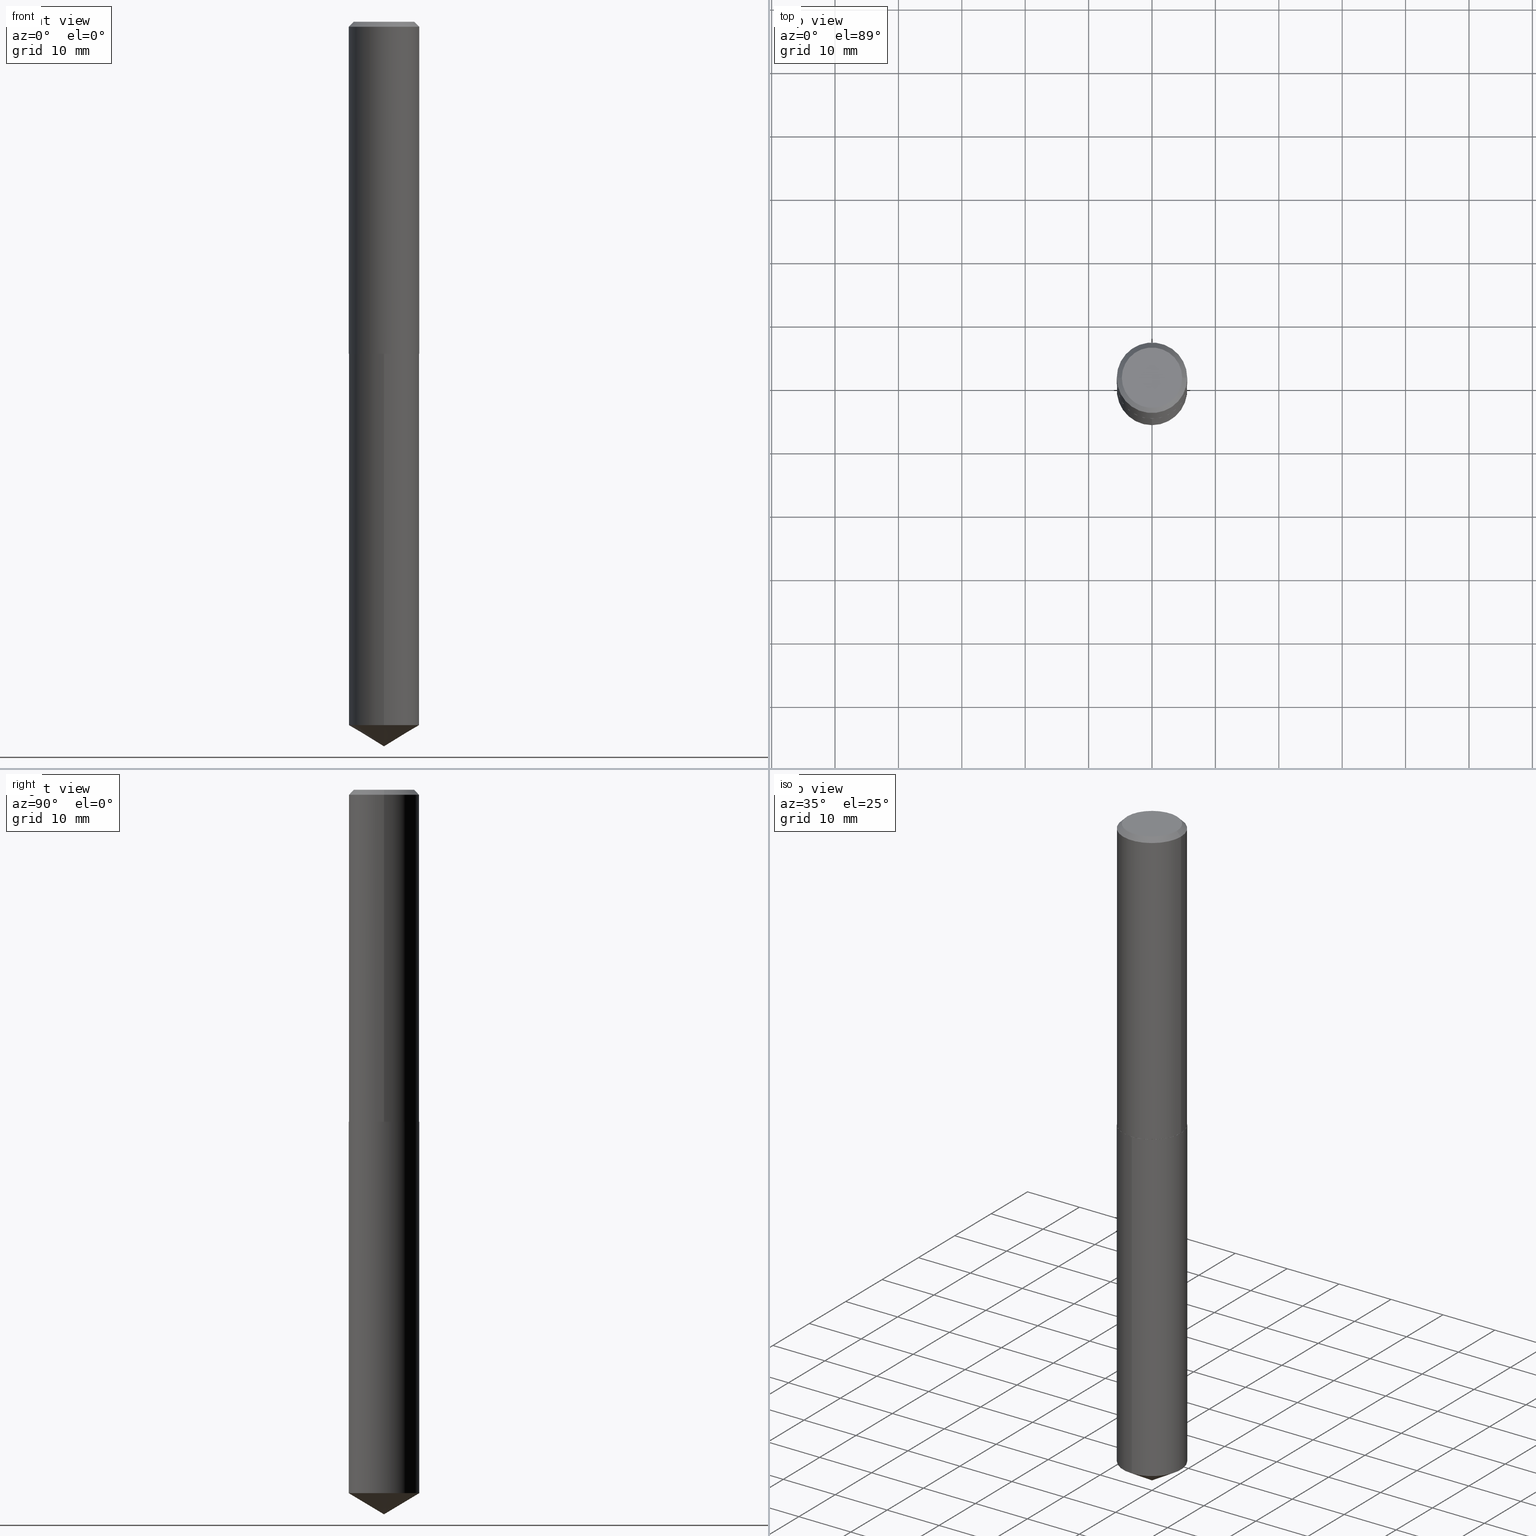
[diagram: canonical four-view strip — front | top / right | iso, engineering-drawing reading convention]
A machine part, canonical four-view strip (front | top / right | iso — engineering-drawing reading convention). The complete STEP part file that produces these views, byte-faithful:
ISO-10303-21;
HEADER;
FILE_DESCRIPTION (( 'STEP AP203' ),
    '1' );
FILE_NAME ('51128.STEP',
    '2024-04-22T18:33:25',
    ( '' ),
    ( '' ),
    'SwSTEP 2.0',
    'SolidWorks 2023',
    '' );
FILE_SCHEMA (( 'CONFIG_CONTROL_DESIGN' ));
ENDSEC;

DATA;
#1 = CARTESIAN_POINT ( 'NONE',  ( 0.2187500000000000000, -1.609842728851371433E-15, -0.03125000000000019429 ) ) ;
#2 = ADVANCED_FACE ( 'NONE', ( #362 ), #266, .T. ) ;
#3 = DIRECTION ( 'NONE',  ( 1.000000000000000000, -6.982962677686266711E-15, 0.000000000000000000 ) ) ;
#4 = EDGE_CURVE ( 'NONE', #21, #66, #49, .T. ) ;
#5 = LINE ( 'NONE', #151, #216 ) ;
#6 = AXIS2_PLACEMENT_3D ( 'NONE', #199, #190, #226 ) ;
#7 = LOCAL_TIME ( 14, 33, 25.00000000000000000, #239 ) ;
#8 = DIRECTION ( 'NONE',  ( -2.445468806185136597E-29, 3.491481338843145583E-15, 1.000000000000000000 ) ) ;
#9 = LENGTH_MEASURE_WITH_UNIT ( LENGTH_MEASURE( 0.02539999999999999897 ), #160 );
#10 = DIRECTION ( 'NONE',  ( -1.000000000000000000, 6.982962677686265922E-15, -4.876176775795935793E-29 ) ) ;
#11 = CIRCLE ( 'NONE', #6, 0.2182500000000001938 ) ;
#12 = APPLICATION_PROTOCOL_DEFINITION ( 'international standard', 'config_control_design', 1994, #194 ) ;
#13 = ORIENTED_EDGE ( 'NONE', *, *, #62, .F. ) ;
#14 = FACE_OUTER_BOUND ( 'NONE', #114, .T. ) ;
#15 = DIRECTION ( 'NONE',  ( -6.982962677686265922E-15, -1.000000000000000000, 3.468864327941581987E-15 ) ) ;
#16 = AXIS2_PLACEMENT_3D ( 'NONE', #270, #171, #82 ) ;
#17 = DIRECTION ( 'NONE',  ( 1.000000000000000000, -6.982962677686266711E-15, 4.876176775795935793E-29 ) ) ;
#18 = CALENDAR_DATE ( 2024, 22, 4 ) ;
#19 = EDGE_LOOP ( 'NONE', ( #231, #193, #320, #311 ) ) ;
#20 = APPROVAL_STATUS ( 'not_yet_approved' ) ;
#21 = VERTEX_POINT ( 'NONE', #141 ) ;
#22 = VECTOR ( 'NONE', #334, 39.37007874015748143 ) ;
#23 = PERSON_AND_ORGANIZATION_ROLE ( 'design_supplier' ) ;
#24 = DIRECTION ( 'NONE',  ( -2.445468806185136877E-29, 3.491481338843145188E-15, 1.000000000000000000 ) ) ;
#25 = ADVANCED_FACE ( 'NONE', ( #261 ), #115, .T. ) ;
#26 = DIRECTION ( 'NONE',  ( 0.000000000000000000, 0.000000000000000000, 1.000000000000000000 ) ) ;
#27 = ORIENTED_EDGE ( 'NONE', *, *, #42, .F. ) ;
#28 = CARTESIAN_POINT ( 'NONE',  ( 5.043779412756844791E-29, -7.201180261363988578E-15, -2.062500000000000000 ) ) ;
#29 = VECTOR ( 'NONE', #156, 39.37007874015748143 ) ;
#30 = LINE ( 'NONE', #31, #29 ) ;
#31 = CARTESIAN_POINT ( 'NONE',  ( 0.2187500000000002220, -8.726957606438439495E-15, -2.062000000000000277 ) ) ;
#32 = FACE_OUTER_BOUND ( 'NONE', #297, .T. ) ;
#33 = AXIS2_PLACEMENT_3D ( 'NONE', #154, #247, #273 ) ;
#34 = CARTESIAN_POINT ( 'NONE',  ( 1.100433559115930198E-28, -1.571205846090825524E-14, -4.500000000000000000 ) ) ;
#35 = ADVANCED_FACE ( 'NONE', ( #385 ), #241, .T. ) ;
#36 = ORIENTED_EDGE ( 'NONE', *, *, #192, .F. ) ;
#37 = ORIENTED_EDGE ( 'NONE', *, *, #263, .T. ) ;
#38 = AXIS2_PLACEMENT_3D ( 'NONE', #246, #8, #3 ) ;
#39 = CC_DESIGN_APPROVAL ( #305, ( #169 ) ) ;
#40 = DIRECTION ( 'NONE',  ( 2.445468806185136597E-29, -3.491481338843145583E-15, -1.000000000000000000 ) ) ;
#41 = VERTEX_POINT ( 'NONE', #236 ) ;
#42 = EDGE_CURVE ( 'NONE', #86, #213, #357, .T. ) ;
#43 = LINE ( 'NONE', #136, #346 ) ;
#44 = EDGE_CURVE ( 'NONE', #73, #299, #207, .T. ) ;
#45 = CONICAL_SURFACE ( 'NONE', #95, 0.2187500000000000000, 0.7853981633974452814 ) ;
#46 = PERSON_AND_ORGANIZATION ( #164, #116 ) ;
#47 = ORIENTED_EDGE ( 'NONE', *, *, #105, .T. ) ;
#48 = PERSON_AND_ORGANIZATION_ROLE ( 'creator' ) ;
#49 = LINE ( 'NONE', #79, #234 ) ;
#50 = EDGE_CURVE ( 'NONE', #213, #293, #352, .T. ) ;
#51 = PERSON_AND_ORGANIZATION ( #164, #116 ) ;
#52 = CARTESIAN_POINT ( 'NONE',  ( 5.042556678353752550E-29, -7.199434520694567863E-15, -2.062000000000000277 ) ) ;
#53 = ADVANCED_FACE ( 'NONE', ( #76 ), #274, .T. ) ;
#54 = CLOSED_SHELL ( 'NONE', ( #53, #336, #250, #180, #35, #2, #315, #366 ) ) ;
#55 = SHAPE_DEFINITION_REPRESENTATION ( #107, #242 ) ;
#56 = EDGE_LOOP ( 'NONE', ( #37, #328, #69, #181 ) ) ;
#57 = DIRECTION ( 'NONE',  ( -2.445468806185136597E-29, 3.491481338843145583E-15, 1.000000000000000000 ) ) ;
#58 = DIRECTION ( 'NONE',  ( 1.000000000000000000, -6.982962677686265922E-15, 4.876176775795935793E-29 ) ) ;
#59 = DIRECTION ( 'NONE',  ( 2.445468806185136597E-29, -3.491481338843145583E-15, -1.000000000000000000 ) ) ;
#60 = CARTESIAN_POINT ( 'NONE',  ( 5.042556678353752550E-29, -7.199434520694567863E-15, -2.062000000000000277 ) ) ;
#61 = DIRECTION ( 'NONE',  ( -0.7071067811865453523, 2.468850131082234184E-15, -0.7071067811865496822 ) ) ;
#62 = EDGE_CURVE ( 'NONE', #73, #109, #300, .T. ) ;
#63 = AXIS2_PLACEMENT_3D ( 'NONE', #203, #59, #370 ) ;
#64 = FACE_OUTER_BOUND ( 'NONE', #350, .T. ) ;
#65 =( CONVERSION_BASED_UNIT ( 'INCH', #9 ) LENGTH_UNIT ( ) NAMED_UNIT ( #183 ) );
#66 = VERTEX_POINT ( 'NONE', #91 ) ;
#67 = ORIENTED_EDGE ( 'NONE', *, *, #354, .T. ) ;
#68 = DIRECTION ( 'NONE',  ( -2.445468806185136597E-29, 3.491481338843145583E-15, 1.000000000000000000 ) ) ;
#69 = ORIENTED_EDGE ( 'NONE', *, *, #172, .F. ) ;
#70 = VECTOR ( 'NONE', #359, 39.37007874015748143 ) ;
#71 = CC_DESIGN_APPROVAL ( #155, ( #225 ) ) ;
#72 = DIRECTION ( 'NONE',  ( 1.000000000000000000, -6.982962677686266711E-15, 4.876179125272552877E-29 ) ) ;
#73 = VERTEX_POINT ( 'NONE', #390 ) ;
#74 = PERSON_AND_ORGANIZATION ( #164, #116 ) ;
#75 = ORIENTED_EDGE ( 'NONE', *, *, #62, .T. ) ;
#76 = FACE_OUTER_BOUND ( 'NONE', #330, .T. ) ;
#77 = CONICAL_SURFACE ( 'NONE', #313, 65.52281426576865897, 1.029744258676656088 ) ;
#78 = CALENDAR_DATE ( 2024, 22, 4 ) ;
#79 = CARTESIAN_POINT ( 'NONE',  ( 0.2187500000000000833, -1.527523085743871435E-15, 1.066663669705361305E-29 ) ) ;
#80 = APPROVAL_ROLE ( '' ) ;
#81 = CC_DESIGN_PERSON_AND_ORGANIZATION_ASSIGNMENT ( #117, #356, ( #225 ) ) ;
#82 = DIRECTION ( 'NONE',  ( -6.982962677686265922E-15, -1.000000000000000000, 3.468864327941581987E-15 ) ) ;
#83 = SECURITY_CLASSIFICATION_LEVEL ( 'unclassified' ) ;
#84 = DIRECTION ( 'NONE',  ( -2.445468806185136877E-29, 3.491481338843145188E-15, 1.000000000000000000 ) ) ;
#85 = AXIS2_PLACEMENT_3D ( 'NONE', #60, #221, #280 ) ;
#86 = VERTEX_POINT ( 'NONE', #333 ) ;
#87 = CARTESIAN_POINT ( 'NONE',  ( 5.043779412756844791E-29, -7.201180261363988578E-15, -2.062500000000000000 ) ) ;
#88 = CARTESIAN_POINT ( 'NONE',  ( 3.241027536557824460E-29, -9.782823554345678561E-15, -2.062500000000000000 ) ) ;
#89 = CIRCLE ( 'NONE', #257, 0.2182500000000001938 ) ;
#90 = CIRCLE ( 'NONE', #106, 0.2187500000000000000 ) ;
#91 = CARTESIAN_POINT ( 'NONE',  ( 0.2187500000000000000, -1.636631877582719746E-15, -0.03125000000000019429 ) ) ;
#92 = CC_DESIGN_PERSON_AND_ORGANIZATION_ASSIGNMENT ( #323, #23, ( #169 ) ) ;
#93 = FACE_OUTER_BOUND ( 'NONE', #19, .T. ) ;
#94 = CARTESIAN_POINT ( 'NONE',  ( -1.527523085743763952E-15, -0.2187500000000152656, -4.368561739587721426 ) ) ;
#95 = AXIS2_PLACEMENT_3D ( 'NONE', #347, #40, #284 ) ;
#96 = CARTESIAN_POINT ( 'NONE',  ( 5.042556678353752550E-29, -7.199434520694567863E-15, -2.062000000000000277 ) ) ;
#97 = AXIS2_PLACEMENT_3D ( 'NONE', #264, #26, #204 ) ;
#98 = ORIENTED_EDGE ( 'NONE', *, *, #271, .T. ) ;
#99 = EDGE_CURVE ( 'NONE', #293, #66, #228, .T. ) ;
#100 = CARTESIAN_POINT ( 'NONE',  ( -1.527523085743819961E-15, -0.2187500000000071887, -2.062499999999999556 ) ) ;
#101 = ORIENTED_EDGE ( 'NONE', *, *, #223, .F. ) ;
#102 = DIRECTION ( 'NONE',  ( 1.000000000000000000, -6.982962677686265133E-15, 0.000000000000000000 ) ) ;
#103 = CARTESIAN_POINT ( 'NONE',  ( 5.043779412756844791E-29, -7.201180261363988578E-15, -2.062500000000000000 ) ) ;
#104 = AXIS2_PLACEMENT_3D ( 'NONE', #28, #126, #129 ) ;
#105 = EDGE_CURVE ( 'NONE', #294, #66, #153, .T. ) ;
#106 = AXIS2_PLACEMENT_3D ( 'NONE', #103, #224, #167 ) ;
#107 = PRODUCT_DEFINITION_SHAPE ( 'NONE', 'NONE',  #225 ) ;
#108 = DIRECTION ( 'NONE',  ( 2.438088387897960049E-29, -3.491481338843145188E-15, -1.000000000000000000 ) ) ;
#109 = VERTEX_POINT ( 'NONE', #94 ) ;
#110 = DATE_TIME_ROLE ( 'creation_date' ) ;
#111 = DIRECTION ( 'NONE',  ( 6.090539988449786324E-15, 0.8571673007021148871, 0.5150380749100498257 ) ) ;
#112 = ADVANCED_FACE ( 'NONE', ( #64 ), #275, .F. ) ;
#113 = MANIFOLD_SOLID_BREP ( 'Body-Move/Copy2[2]', #54 ) ;
#114 = EDGE_LOOP ( 'NONE', ( #309, #123 ) ) ;
#115 = CONICAL_SURFACE ( 'NONE', #16, 65.52281426576865897, 1.029744258676656088 ) ;
#116 = ORGANIZATION ( 'UNSPECIFIED', 'UNSPECIFIED', '' ) ;
#117 = PERSON_AND_ORGANIZATION ( #164, #116 ) ;
#118 = ORIENTED_EDGE ( 'NONE', *, *, #263, .F. ) ;
#119 = COORDINATED_UNIVERSAL_TIME_OFFSET ( 5, 0, .BEHIND. ) ;
#120 = EDGE_CURVE ( 'NONE', #132, #21, #30, .T. ) ;
#121 = CARTESIAN_POINT ( 'NONE',  ( 0.000000000000000000, 0.000000000000000000, 0.000000000000000000 ) ) ;
#122 = PERSON_AND_ORGANIZATION ( #164, #116 ) ;
#123 = ORIENTED_EDGE ( 'NONE', *, *, #332, .T. ) ;
#124 = AXIS2_PLACEMENT_3D ( 'NONE', #335, #159, #303 ) ;
#125 = DIRECTION ( 'NONE',  ( -2.445407909146511426E-29, 3.491568546868500989E-15, 1.000000000000000000 ) ) ;
#126 = DIRECTION ( 'NONE',  ( 2.445407909146511146E-29, -3.491568546868500989E-15, -1.000000000000000000 ) ) ;
#127 = DIRECTION ( 'NONE',  ( 1.000000000000000000, -6.982962677686266711E-15, 0.000000000000000000 ) ) ;
#128 = VECTOR ( 'NONE', #337, 39.37007874015748143 ) ;
#129 = DIRECTION ( 'NONE',  ( 6.982962677686265922E-15, 1.000000000000000000, -3.491568546868500989E-15 ) ) ;
#130 = APPLICATION_CONTEXT ( 'configuration controlled 3d designs of mechanical parts and assemblies' ) ;
#131 = CARTESIAN_POINT ( 'NONE',  ( 1.554312234475269249E-15, 0.2187499999999927836, -2.062500000000000888 ) ) ;
#132 = VERTEX_POINT ( 'NONE', #186 ) ;
#133 = CIRCLE ( 'NONE', #265, 0.2187500000000000000 ) ;
#134 = CARTESIAN_POINT ( 'NONE',  ( 1.554312234475325850E-15, 0.2187499999999847622, -4.368561739587722315 ) ) ;
#135 = ADVANCED_FACE ( 'NONE', ( #276 ), #244, .T. ) ;
#136 = CARTESIAN_POINT ( 'NONE',  ( -1.527523085743819961E-15, -0.2187500000000071887, -2.062499999999999556 ) ) ;
#137 = PRODUCT_RELATED_PRODUCT_CATEGORY ( 'detail', '', ( #162 ) ) ;
#138 = PLANE ( 'NONE',  #298 ) ;
#139 = AXIS2_PLACEMENT_3D ( 'NONE', #349, #256, #229 ) ;
#140 = MECHANICAL_CONTEXT ( 'NONE', #194, 'mechanical' ) ;
#141 = CARTESIAN_POINT ( 'NONE',  ( 0.2187500000000002220, -8.726957606438439495E-15, -2.062000000000000277 ) ) ;
#142 = APPROVAL_ROLE ( '' ) ;
#143 = ORIENTED_EDGE ( 'NONE', *, *, #144, .T. ) ;
#144 = EDGE_CURVE ( 'NONE', #213, #21, #325, .T. ) ;
#145 = PERSON_AND_ORGANIZATION_ROLE ( 'classification_officer' ) ;
#146 = ORIENTED_EDGE ( 'NONE', *, *, #105, .F. ) ;
#147 = PERSON_AND_ORGANIZATION ( #164, #116 ) ;
#148 = VERTEX_POINT ( 'NONE', #365 ) ;
#149 = EDGE_CURVE ( 'NONE', #148, #293, #5, .T. ) ;
#150 = EDGE_LOOP ( 'NONE', ( #235, #101 ) ) ;
#151 = CARTESIAN_POINT ( 'NONE',  ( -0.2187500000000000000, 1.418414293905021742E-15, -0.03125000000000019429 ) ) ;
#152 = CONICAL_SURFACE ( 'NONE', #85, 0.2187500000000002220, 0.7853981633975849475 ) ;
#153 = LINE ( 'NONE', #1, #128 ) ;
#154 = CARTESIAN_POINT ( 'NONE',  ( 5.043779412756844791E-29, -7.201180261363988578E-15, -2.062500000000000000 ) ) ;
#155 = APPROVAL ( #20, 'UNSPECIFIED' ) ;
#156 = DIRECTION ( 'NONE',  ( 0.7071067811866441621, -2.468850131083269169E-15, 0.7071067811864508723 ) ) ;
#157 = AXIS2_PLACEMENT_3D ( 'NONE', #369, #279, #214 ) ;
#158 = CC_DESIGN_SECURITY_CLASSIFICATION ( #290, ( #169 ) ) ;
#159 = DIRECTION ( 'NONE',  ( -2.445407909146511426E-29, 3.491568546868500989E-15, 1.000000000000000000 ) ) ;
#160 =( LENGTH_UNIT ( ) NAMED_UNIT ( * ) SI_UNIT ( $, .METRE. ) );
#161 = CARTESIAN_POINT ( 'NONE',  ( -1.167985862904636054E-47, 1.667574263899817862E-33, 4.776122516674672132E-19 ) ) ;
#162 = PRODUCT ( '51128', '51128', '', ( #140 ) ) ;
#163 = ORIENTED_EDGE ( 'NONE', *, *, #149, .T. ) ;
#164 = PERSON ( 'UNSPECIFIED', 'UNSPECIFIED', 'UNSPECIFIED', ('UNSPECIFIED'), ('UNSPECIFIED'), ('UNSPECIFIED') ) ;
#165 = CARTESIAN_POINT ( 'NONE',  ( -2.335971725809272108E-47, 3.335148527799635725E-33, 9.552245033349344265E-19 ) ) ;
#166 = CC_DESIGN_PERSON_AND_ORGANIZATION_ASSIGNMENT ( #173, #48, ( #169 ) ) ;
#167 = DIRECTION ( 'NONE',  ( -6.982962677686265133E-15, -1.000000000000000000, 3.746534391310989557E-15 ) ) ;
#168 = ORIENTED_EDGE ( 'NONE', *, *, #4, .T. ) ;
#169 = PRODUCT_DEFINITION_FORMATION_WITH_SPECIFIED_SOURCE ( 'ANY', '', #162, .NOT_KNOWN. ) ;
#170 = CALENDAR_DATE ( 2024, 22, 4 ) ;
#171 = DIRECTION ( 'NONE',  ( -2.445407909146511426E-29, 3.491568546868500989E-15, 1.000000000000000000 ) ) ;
#172 = EDGE_CURVE ( 'NONE', #66, #293, #251, .T. ) ;
#173 = PERSON_AND_ORGANIZATION ( #164, #116 ) ;
#174 = ORIENTED_EDGE ( 'NONE', *, *, #208, .T. ) ;
#175 = DATE_AND_TIME ( #170, #389 ) ;
#176 = ORIENTED_EDGE ( 'NONE', *, *, #120, .T. ) ;
#177 = VECTOR ( 'NONE', #367, 39.37007874015748143 ) ;
#178 = LOCAL_TIME ( 14, 33, 25.00000000000000000, #321 ) ;
#179 = EDGE_CURVE ( 'NONE', #109, #299, #133, .T. ) ;
#180 = ADVANCED_FACE ( 'NONE', ( #306 ), #187, .F. ) ;
#181 = ORIENTED_EDGE ( 'NONE', *, *, #4, .F. ) ;
#182 = ORIENTED_EDGE ( 'NONE', *, *, #360, .F. ) ;
#183 = DIMENSIONAL_EXPONENTS ( 1.000000000000000000, 0.000000000000000000, 0.000000000000000000, 0.000000000000000000, 0.000000000000000000, 0.000000000000000000, 0.000000000000000000 ) ;
#184 = DIRECTION ( 'NONE',  ( -2.445468806185136597E-29, 3.491481338843145583E-15, 1.000000000000000000 ) ) ;
#185 = DIRECTION ( 'NONE',  ( -2.445407909146511426E-29, 3.491568546868500989E-15, 1.000000000000000000 ) ) ;
#186 = CARTESIAN_POINT ( 'NONE',  ( 0.2182500000000001938, -8.725211865769018780E-15, -2.062500000000000000 ) ) ;
#187 = PLANE ( 'NONE',  #289 ) ;
#188 = ADVANCED_FACE ( 'NONE', ( #93 ), #363, .T. ) ;
#189 = CARTESIAN_POINT ( 'NONE',  ( 0.1874999999999999722, -1.448093051716766899E-15, 9.552245033445756318E-19 ) ) ;
#190 = DIRECTION ( 'NONE',  ( -2.445468806185136597E-29, 3.491481338843145583E-15, 1.000000000000000000 ) ) ;
#191 = FACE_OUTER_BOUND ( 'NONE', #259, .T. ) ;
#192 = EDGE_CURVE ( 'NONE', #299, #41, #245, .T. ) ;
#193 = ORIENTED_EDGE ( 'NONE', *, *, #192, .T. ) ;
#194 = APPLICATION_CONTEXT ( 'configuration controlled 3d designs of mechanical parts and assemblies' ) ;
#195 = AXIS2_PLACEMENT_3D ( 'NONE', #121, #57, #17 ) ;
#196 = DIRECTION ( 'NONE',  ( -2.445407909146511426E-29, 3.491568546868500989E-15, 1.000000000000000000 ) ) ;
#197 = CC_DESIGN_APPROVAL ( #386, ( #290 ) ) ;
#198 = ORIENTED_EDGE ( 'NONE', *, *, #281, .F. ) ;
#199 = CARTESIAN_POINT ( 'NONE',  ( 5.043779412756844791E-29, -7.201180261363988578E-15, -2.062500000000000000 ) ) ;
#200 = ORIENTED_EDGE ( 'NONE', *, *, #99, .F. ) ;
#201 = COORDINATED_UNIVERSAL_TIME_OFFSET ( 5, 0, .BEHIND. ) ;
#202 = AXIS2_PLACEMENT_3D ( 'NONE', #165, #316, #72 ) ;
#203 = CARTESIAN_POINT ( 'NONE',  ( 7.642090019328599159E-31, -1.091087918388489774E-16, -0.03125000000000019429 ) ) ;
#204 = DIRECTION ( 'NONE',  ( 1.000000000000000000, 0.000000000000000000, 0.000000000000000000 ) ) ;
#205 = CARTESIAN_POINT ( 'NONE',  ( 1.100458899417360449E-28, -1.571169872780366483E-14, -4.500000000000000000 ) ) ;
#206 = CALENDAR_DATE ( 2024, 22, 4 ) ;
#207 = LINE ( 'NONE', #205, #211 ) ;
#208 = EDGE_CURVE ( 'NONE', #344, #41, #377, .T. ) ;
#209 = COORDINATED_UNIVERSAL_TIME_OFFSET ( 5, 0, .BEHIND. ) ;
#210 = EDGE_LOOP ( 'NONE', ( #13, #355, #272 ) ) ;
#211 = VECTOR ( 'NONE', #111, 39.37007874015748854 ) ;
#212 = CC_DESIGN_DATE_AND_TIME_ASSIGNMENT ( #175, #384, ( #290 ) ) ;
#213 = VERTEX_POINT ( 'NONE', #217 ) ;
#214 = DIRECTION ( 'NONE',  ( 1.000000000000000000, -6.982962677686265133E-15, 0.000000000000000000 ) ) ;
#215 = DIRECTION ( 'NONE',  ( -6.982962677686265133E-15, -1.000000000000000000, 2.497689594207326371E-15 ) ) ;
#216 = VECTOR ( 'NONE', #61, 39.37007874015748143 ) ;
#217 = CARTESIAN_POINT ( 'NONE',  ( -0.2187500000000002220, -5.645122286219346340E-15, -2.062000000000000277 ) ) ;
#218 = DIRECTION ( 'NONE',  ( -2.438088387897960049E-29, 3.491481338843145188E-15, 1.000000000000000000 ) ) ;
#219 = DIRECTION ( 'NONE',  ( -2.445468806185136597E-29, 3.491481338843145583E-15, 1.000000000000000000 ) ) ;
#220 = CLOSED_SHELL ( 'NONE', ( #188, #25, #364, #135, #112 ) ) ;
#221 = DIRECTION ( 'NONE',  ( -2.445468806185136597E-29, 3.491481338843145583E-15, 1.000000000000000000 ) ) ;
#222 = ORIENTED_EDGE ( 'NONE', *, *, #50, .F. ) ;
#223 = EDGE_CURVE ( 'NONE', #86, #132, #89, .T. ) ;
#224 = DIRECTION ( 'NONE',  ( -2.445407909146511426E-29, 3.491568546868500989E-15, 1.000000000000000000 ) ) ;
#225 = PRODUCT_DEFINITION ( 'UNKNOWN', '', #169, #283 ) ;
#226 = DIRECTION ( 'NONE',  ( 1.000000000000000000, -6.982962677686267499E-15, 0.000000000000000000 ) ) ;
#227 = ORIENTED_EDGE ( 'NONE', *, *, #172, .T. ) ;
#228 = CIRCLE ( 'NONE', #296, 0.2187500000000000000 ) ;
#229 = DIRECTION ( 'NONE',  ( -6.982962677686265133E-15, -1.000000000000000000, 2.497689594207326371E-15 ) ) ;
#230 = FACE_OUTER_BOUND ( 'NONE', #56, .T. ) ;
#231 = ORIENTED_EDGE ( 'NONE', *, *, #179, .T. ) ;
#232 = ORIENTED_EDGE ( 'NONE', *, *, #223, .T. ) ;
#233 = DATE_AND_TIME ( #319, #338 ) ;
#234 = VECTOR ( 'NONE', #24, 39.37007874015748143 ) ;
#235 = ORIENTED_EDGE ( 'NONE', *, *, #271, .F. ) ;
#236 = CARTESIAN_POINT ( 'NONE',  ( 1.554312234475326047E-15, 0.2187499999999927836, -2.062500000000000888 ) ) ;
#237 = APPROVAL_STATUS ( 'not_yet_approved' ) ;
#238 = CARTESIAN_POINT ( 'NONE',  ( -0.2187500000000002220, -5.645122286219346340E-15, -2.062000000000000277 ) ) ;
#239 = COORDINATED_UNIVERSAL_TIME_OFFSET ( 5, 0, .BEHIND. ) ;
#240 = ORIENTED_EDGE ( 'NONE', *, *, #120, .F. ) ;
#241 = CONICAL_SURFACE ( 'NONE', #302, 0.2187500000000002220, 0.7853981633975849475 ) ;
#242 = ADVANCED_BREP_SHAPE_REPRESENTATION ( '51128', ( #373, #113, #97 ), #282 ) ;
#243 = CARTESIAN_POINT ( 'NONE',  ( 7.642090019328599159E-31, -1.091087918388489774E-16, -0.03125000000000019429 ) ) ;
#244 = CYLINDRICAL_SURFACE ( 'NONE', #381, 0.2187500000000000000 ) ;
#245 = LINE ( 'NONE', #131, #177 ) ;
#246 = CARTESIAN_POINT ( 'NONE',  ( 7.642090019328599159E-31, -1.091087918388489774E-16, -0.03125000000000019429 ) ) ;
#247 = DIRECTION ( 'NONE',  ( -2.445407909146511426E-29, 3.491568546868500989E-15, 1.000000000000000000 ) ) ;
#248 = FACE_OUTER_BOUND ( 'NONE', #285, .T. ) ;
#249 = EDGE_LOOP ( 'NONE', ( #222, #143, #168, #200 ) ) ;
#250 = ADVANCED_FACE ( 'NONE', ( #32 ), #152, .T. ) ;
#251 = CIRCLE ( 'NONE', #38, 0.2187500000000000000 ) ;
#252 = AXIS2_PLACEMENT_3D ( 'NONE', #255, #68, #342 ) ;
#253 = DIRECTION ( 'NONE',  ( -2.445468806185136597E-29, 3.491481338843145583E-15, 1.000000000000000000 ) ) ;
#254 = ORIENTED_EDGE ( 'NONE', *, *, #42, .T. ) ;
#255 = CARTESIAN_POINT ( 'NONE',  ( -2.335971725809272108E-47, 3.335148527799635725E-33, 9.552245033349344265E-19 ) ) ;
#256 = DIRECTION ( 'NONE',  ( -2.445407909146511426E-29, 3.491568546868500989E-15, 1.000000000000000000 ) ) ;
#257 = AXIS2_PLACEMENT_3D ( 'NONE', #87, #184, #301 ) ;
#258 = CARTESIAN_POINT ( 'NONE',  ( -0.2187500000000000000, -2.099959421791488142E-15, -0.03125000000000019429 ) ) ;
#259 = EDGE_LOOP ( 'NONE', ( #348, #75, #198 ) ) ;
#260 = APPLICATION_PROTOCOL_DEFINITION ( 'international standard', 'config_control_design', 1994, #130 ) ;
#261 = FACE_OUTER_BOUND ( 'NONE', #210, .T. ) ;
#262 = ORIENTED_EDGE ( 'NONE', *, *, #281, .T. ) ;
#263 = EDGE_CURVE ( 'NONE', #21, #213, #345, .T. ) ;
#264 = CARTESIAN_POINT ( 'NONE',  ( 0.000000000000000000, 0.000000000000000000, 0.000000000000000000 ) ) ;
#265 = AXIS2_PLACEMENT_3D ( 'NONE', #304, #185, #215 ) ;
#266 = CYLINDRICAL_SURFACE ( 'NONE', #195, 0.2187500000000000833 ) ;
#267 = CIRCLE ( 'NONE', #252, 0.1874999999999999722 ) ;
#268 = CC_DESIGN_PERSON_AND_ORGANIZATION_ASSIGNMENT ( #122, #292, ( #162 ) ) ;
#269 = DATE_AND_TIME ( #18, #7 ) ;
#270 = CARTESIAN_POINT ( 'NONE',  ( -8.527144074360056281E-28, 1.217514500225141561E-13, 34.87007874015748143 ) ) ;
#271 = EDGE_CURVE ( 'NONE', #132, #86, #11, .T. ) ;
#272 = ORIENTED_EDGE ( 'NONE', *, *, #179, .F. ) ;
#273 = DIRECTION ( 'NONE',  ( -6.982962677686265133E-15, -1.000000000000000000, 3.746534391310989557E-15 ) ) ;
#274 = CONICAL_SURFACE ( 'NONE', #63, 0.2187500000000000000, 0.7853981633974452814 ) ;
#275 = PLANE ( 'NONE',  #104 ) ;
#276 = FACE_OUTER_BOUND ( 'NONE', #380, .T. ) ;
#277 = DIRECTION ( 'NONE',  ( -6.982962677686265133E-15, -1.000000000000000000, 3.746534391310989557E-15 ) ) ;
#278 = CC_DESIGN_PERSON_AND_ORGANIZATION_ASSIGNMENT ( #51, #145, ( #290 ) ) ;
#279 = DIRECTION ( 'NONE',  ( -2.445468806185136597E-29, 3.491481338843145583E-15, 1.000000000000000000 ) ) ;
#280 = DIRECTION ( 'NONE',  ( 1.000000000000000000, -6.982962677686265133E-15, 0.000000000000000000 ) ) ;
#281 = EDGE_CURVE ( 'NONE', #299, #109, #307, .T. ) ;
#282 =( GEOMETRIC_REPRESENTATION_CONTEXT ( 3 ) GLOBAL_UNCERTAINTY_ASSIGNED_CONTEXT ( ( #340 ) ) GLOBAL_UNIT_ASSIGNED_CONTEXT ( ( #65, #371, #376 ) ) REPRESENTATION_CONTEXT ( 'NONE', 'WORKASPACE' ) );
#283 = DESIGN_CONTEXT ( 'detailed design', #130, 'design' ) ;
#284 = DIRECTION ( 'NONE',  ( -1.000000000000000000, 6.982962677686266711E-15, 0.000000000000000000 ) ) ;
#285 = EDGE_LOOP ( 'NONE', ( #146, #324, #163, #317 ) ) ;
#286 = CARTESIAN_POINT ( 'NONE',  ( 0.000000000000000000, 0.000000000000000000, 0.000000000000000000 ) ) ;
#287 = ORIENTED_EDGE ( 'NONE', *, *, #149, .F. ) ;
#288 = DIRECTION ( 'NONE',  ( -2.445407909146511426E-29, 3.491568546868500989E-15, 1.000000000000000000 ) ) ;
#289 = AXIS2_PLACEMENT_3D ( 'NONE', #88, #218, #58 ) ;
#290 = SECURITY_CLASSIFICATION ( '', '', #83 ) ;
#291 = APPROVAL_DATE_TIME ( #353, #305 ) ;
#292 = PERSON_AND_ORGANIZATION_ROLE ( 'design_owner' ) ;
#293 = VERTEX_POINT ( 'NONE', #258 ) ;
#294 = VERTEX_POINT ( 'NONE', #189 ) ;
#295 = APPROVAL_STATUS ( 'not_yet_approved' ) ;
#296 = AXIS2_PLACEMENT_3D ( 'NONE', #243, #219, #127 ) ;
#297 = EDGE_LOOP ( 'NONE', ( #98, #254, #118, #240 ) ) ;
#298 = AXIS2_PLACEMENT_3D ( 'NONE', #161, #108, #10 ) ;
#299 = VERTEX_POINT ( 'NONE', #134 ) ;
#300 = LINE ( 'NONE', #34, #22 ) ;
#301 = DIRECTION ( 'NONE',  ( 1.000000000000000000, -6.982962677686267499E-15, 0.000000000000000000 ) ) ;
#302 = AXIS2_PLACEMENT_3D ( 'NONE', #52, #379, #383 ) ;
#303 = DIRECTION ( 'NONE',  ( -6.982962677686265133E-15, -1.000000000000000000, 3.746534391310989557E-15 ) ) ;
#304 = CARTESIAN_POINT ( 'NONE',  ( 1.068304102972482118E-28, -1.525295289844533477E-14, -4.368561739587721426 ) ) ;
#305 = APPROVAL ( #237, 'UNSPECIFIED' ) ;
#306 = FACE_OUTER_BOUND ( 'NONE', #150, .T. ) ;
#307 = CIRCLE ( 'NONE', #139, 0.2187500000000000000 ) ;
#308 = DIRECTION ( 'NONE',  ( 1.000000000000000000, -6.982962677686266711E-15, 4.876176775795935793E-29 ) ) ;
#309 = ORIENTED_EDGE ( 'NONE', *, *, #343, .T. ) ;
#310 = CARTESIAN_POINT ( 'NONE',  ( -8.527144074360056281E-28, 1.217514500225141561E-13, 34.87007874015748143 ) ) ;
#311 = ORIENTED_EDGE ( 'NONE', *, *, #354, .F. ) ;
#312 = AXIS2_PLACEMENT_3D ( 'NONE', #96, #314, #102 ) ;
#313 = AXIS2_PLACEMENT_3D ( 'NONE', #310, #288, #15 ) ;
#314 = DIRECTION ( 'NONE',  ( -2.445468806185136597E-29, 3.491481338843145583E-15, 1.000000000000000000 ) ) ;
#315 = ADVANCED_FACE ( 'NONE', ( #248 ), #45, .T. ) ;
#316 = DIRECTION ( 'NONE',  ( -2.445468806185136597E-29, 3.491481338843145583E-15, 1.000000000000000000 ) ) ;
#317 = ORIENTED_EDGE ( 'NONE', *, *, #99, .T. ) ;
#318 = APPROVAL_PERSON_ORGANIZATION ( #147, #155, #80 ) ;
#319 = CALENDAR_DATE ( 2024, 22, 4 ) ;
#320 = ORIENTED_EDGE ( 'NONE', *, *, #208, .F. ) ;
#321 = COORDINATED_UNIVERSAL_TIME_OFFSET ( 5, 0, .BEHIND. ) ;
#322 = CARTESIAN_POINT ( 'NONE',  ( -0.2187500000000000833, 1.554312234475219748E-15, -1.076017050993261043E-29 ) ) ;
#323 = PERSON_AND_ORGANIZATION ( #164, #116 ) ;
#324 = ORIENTED_EDGE ( 'NONE', *, *, #343, .F. ) ;
#325 = CIRCLE ( 'NONE', #157, 0.2187500000000002220 ) ;
#326 = APPROVAL_DATE_TIME ( #269, #386 ) ;
#327 = VECTOR ( 'NONE', #84, 39.37007874015748143 ) ;
#328 = ORIENTED_EDGE ( 'NONE', *, *, #50, .T. ) ;
#329 = LOCAL_TIME ( 14, 33, 25.00000000000000000, #119 ) ;
#330 = EDGE_LOOP ( 'NONE', ( #372, #47, #227, #287 ) ) ;
#331 = CARTESIAN_POINT ( 'NONE',  ( 5.043779412756844791E-29, -7.201180261363988578E-15, -2.062500000000000000 ) ) ;
#332 = EDGE_CURVE ( 'NONE', #294, #148, #388, .T. ) ;
#333 = CARTESIAN_POINT ( 'NONE',  ( -0.2182500000000001938, -5.647771513393457541E-15, -2.062500000000000000 ) ) ;
#334 = DIRECTION ( 'NONE',  ( -5.985567269335949168E-15, -0.8571673007021112234, 0.5150380749100558209 ) ) ;
#335 = CARTESIAN_POINT ( 'NONE',  ( 5.043779412756844791E-29, -7.201180261363988578E-15, -2.062500000000000000 ) ) ;
#336 = ADVANCED_FACE ( 'NONE', ( #230 ), #339, .T. ) ;
#337 = DIRECTION ( 'NONE',  ( 0.7071067811865453523, -7.319954787623248157E-15, -0.7071067811865496822 ) ) ;
#338 = LOCAL_TIME ( 14, 33, 25.00000000000000000, #201 ) ;
#339 = CYLINDRICAL_SURFACE ( 'NONE', #361, 0.2187500000000000833 ) ;
#340 = UNCERTAINTY_MEASURE_WITH_UNIT (LENGTH_MEASURE( 1.000000000000000082E-05 ), #65, 'distance_accuracy_value', 'NONE');
#341 = EDGE_LOOP ( 'NONE', ( #27, #232, #176, #387 ) ) ;
#342 = DIRECTION ( 'NONE',  ( 1.000000000000000000, -6.982962677686266711E-15, 4.876179125272552877E-29 ) ) ;
#343 = EDGE_CURVE ( 'NONE', #148, #294, #267, .T. ) ;
#344 = VERTEX_POINT ( 'NONE', #100 ) ;
#345 = CIRCLE ( 'NONE', #312, 0.2187500000000002220 ) ;
#346 = VECTOR ( 'NONE', #196, 39.37007874015748143 ) ;
#347 = CARTESIAN_POINT ( 'NONE',  ( 7.642090019328599159E-31, -1.091087918388489774E-16, -0.03125000000000019429 ) ) ;
#348 = ORIENTED_EDGE ( 'NONE', *, *, #44, .F. ) ;
#349 = CARTESIAN_POINT ( 'NONE',  ( 1.068304102972482118E-28, -1.525295289844533477E-14, -4.368561739587721426 ) ) ;
#350 = EDGE_LOOP ( 'NONE', ( #174, #374 ) ) ;
#351 = DATE_AND_TIME ( #78, #329 ) ;
#352 = LINE ( 'NONE', #322, #327 ) ;
#353 = DATE_AND_TIME ( #206, #178 ) ;
#354 = EDGE_CURVE ( 'NONE', #109, #344, #43, .T. ) ;
#355 = ORIENTED_EDGE ( 'NONE', *, *, #44, .T. ) ;
#356 = PERSON_AND_ORGANIZATION_ROLE ( 'creator' ) ;
#357 = LINE ( 'NONE', #238, #70 ) ;
#358 = APPROVAL_ROLE ( '' ) ;
#359 = DIRECTION ( 'NONE',  ( -0.7071067811866441621, 7.493145998870704414E-15, 0.7071067811864508723 ) ) ;
#360 = EDGE_CURVE ( 'NONE', #41, #344, #90, .T. ) ;
#361 = AXIS2_PLACEMENT_3D ( 'NONE', #286, #253, #308 ) ;
#362 = FACE_OUTER_BOUND ( 'NONE', #249, .T. ) ;
#363 = CYLINDRICAL_SURFACE ( 'NONE', #124, 0.2187500000000000000 ) ;
#364 = ADVANCED_FACE ( 'NONE', ( #191 ), #77, .T. ) ;
#365 = CARTESIAN_POINT ( 'NONE',  ( -0.1874999999999999722, 1.363859897985598178E-15, 9.552245033255873107E-19 ) ) ;
#366 = ADVANCED_FACE ( 'NONE', ( #14 ), #138, .F. ) ;
#367 = DIRECTION ( 'NONE',  ( -2.445407909146511426E-29, 3.491568546868500989E-15, 1.000000000000000000 ) ) ;
#368 = APPROVAL_PERSON_ORGANIZATION ( #74, #305, #358 ) ;
#369 = CARTESIAN_POINT ( 'NONE',  ( 5.042556678353752550E-29, -7.199434520694567863E-15, -2.062000000000000277 ) ) ;
#370 = DIRECTION ( 'NONE',  ( -1.000000000000000000, 6.982962677686266711E-15, 0.000000000000000000 ) ) ;
#371 =( NAMED_UNIT ( * ) PLANE_ANGLE_UNIT ( ) SI_UNIT ( $, .RADIAN. ) );
#372 = ORIENTED_EDGE ( 'NONE', *, *, #332, .F. ) ;
#373 = MANIFOLD_SOLID_BREP ( 'Body-Move/Copy2[1]', #220 ) ;
#374 = ORIENTED_EDGE ( 'NONE', *, *, #360, .T. ) ;
#375 = CC_DESIGN_DATE_AND_TIME_ASSIGNMENT ( #351, #110, ( #225 ) ) ;
#376 =( NAMED_UNIT ( * ) SI_UNIT ( $, .STERADIAN. ) SOLID_ANGLE_UNIT ( ) );
#377 = CIRCLE ( 'NONE', #33, 0.2187500000000000000 ) ;
#378 = APPROVAL_PERSON_ORGANIZATION ( #46, #386, #142 ) ;
#379 = DIRECTION ( 'NONE',  ( -2.445468806185136597E-29, 3.491481338843145583E-15, 1.000000000000000000 ) ) ;
#380 = EDGE_LOOP ( 'NONE', ( #36, #262, #67, #182 ) ) ;
#381 = AXIS2_PLACEMENT_3D ( 'NONE', #331, #125, #277 ) ;
#382 = APPROVAL_DATE_TIME ( #233, #155 ) ;
#383 = DIRECTION ( 'NONE',  ( 1.000000000000000000, -6.982962677686265133E-15, 0.000000000000000000 ) ) ;
#384 = DATE_TIME_ROLE ( 'classification_date' ) ;
#385 = FACE_OUTER_BOUND ( 'NONE', #341, .T. ) ;
#386 = APPROVAL ( #295, 'UNSPECIFIED' ) ;
#387 = ORIENTED_EDGE ( 'NONE', *, *, #144, .F. ) ;
#388 = CIRCLE ( 'NONE', #202, 0.1874999999999999722 ) ;
#389 = LOCAL_TIME ( 14, 33, 25.00000000000000000, #209 ) ;
#390 = CARTESIAN_POINT ( 'NONE',  ( 1.100433559115930198E-28, -1.571205846090825524E-14, -4.500000000000000000 ) ) ;
ENDSEC;
END-ISO-10303-21;
